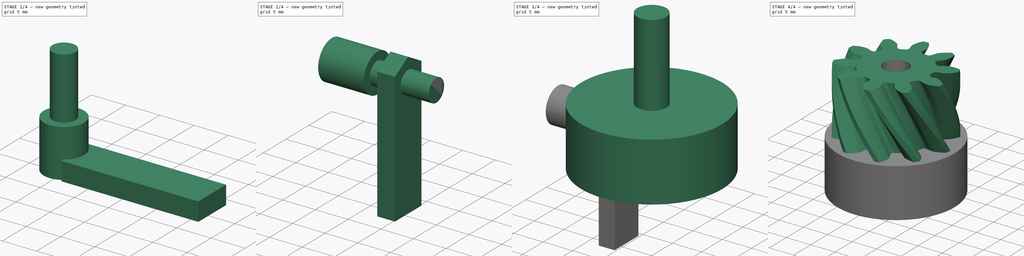
[diagram: build sequence overview — one tinted view per stage of 4, left to right]
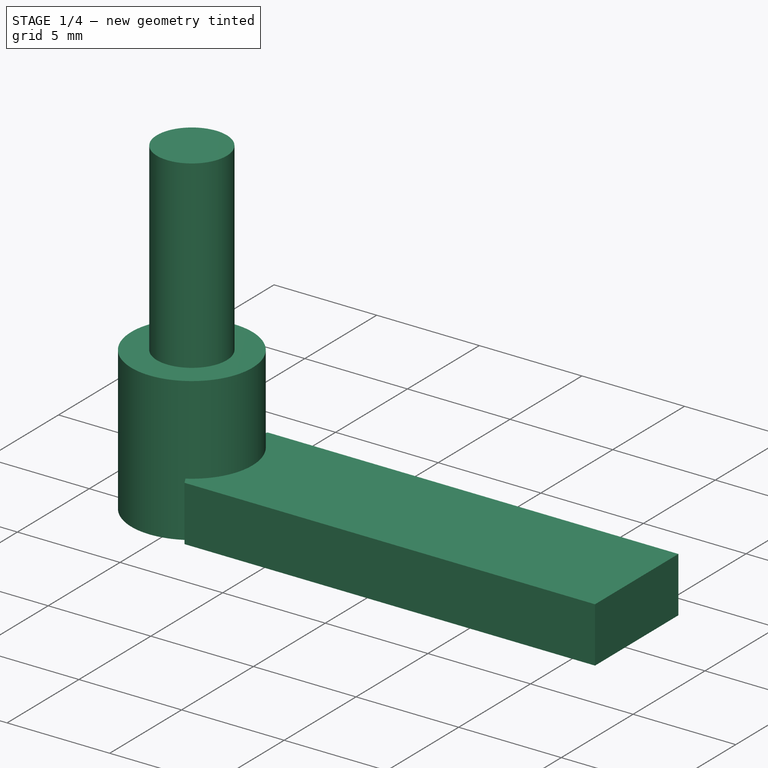
[diagram: stage 1 of 4 — iso view after this stage's code; geometry added in this stage tinted green]
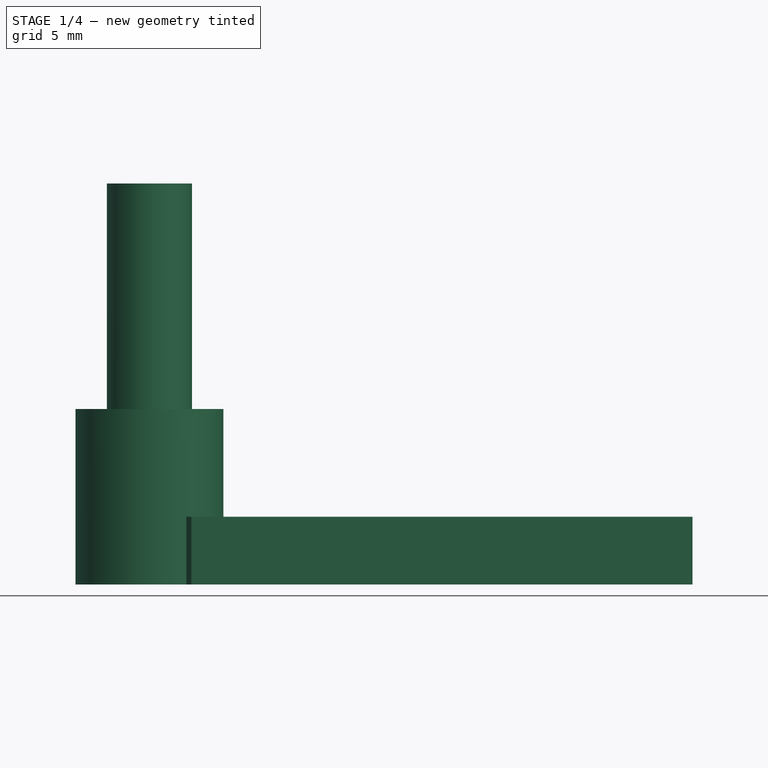
[diagram: stage 1 of 4 — front view after this stage's code; geometry added in this stage tinted green]
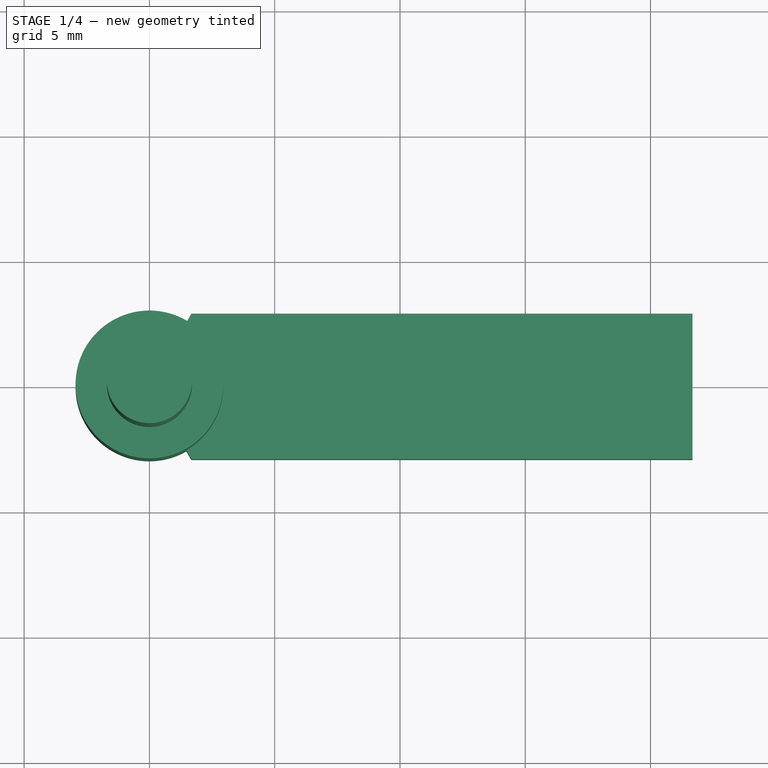
[diagram: stage 1 of 4 — top view after this stage's code; geometry added in this stage tinted green]
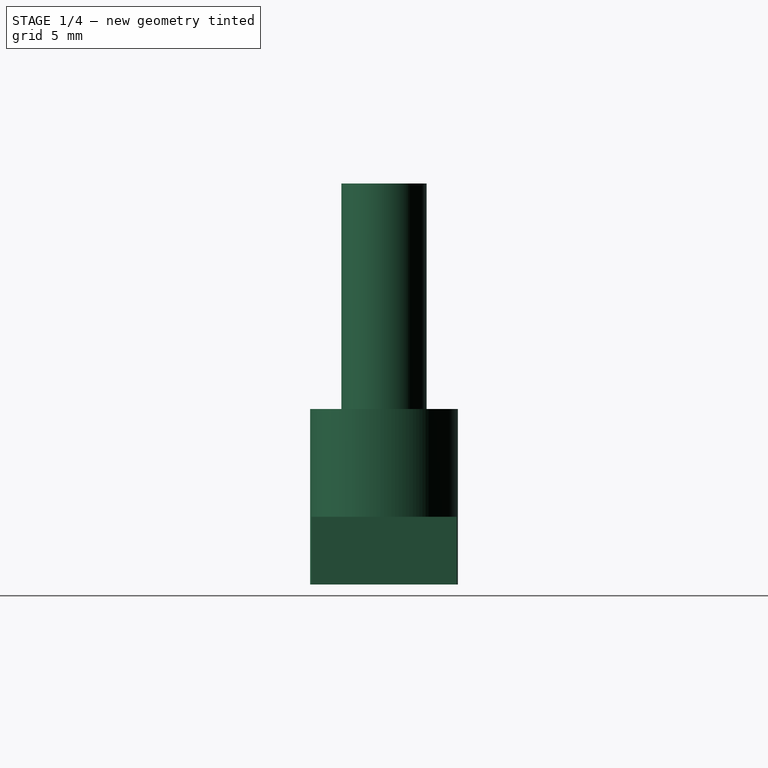
[diagram: stage 1 of 4 — right view after this stage's code; geometry added in this stage tinted green]
FCSTD DOCUMENT  (FreeCAD 0.16R6458 (Git))
Label: Art4MotorGear
License: All rights reserved
LicenseURL: http://en.wikipedia.org/wiki/All_rights_reserved
objects: Part::Cylinder×4, Part::MultiFuse×3, Part::FeaturePython×2, Sketcher::SketchObject×1, PartDesign::Pad×1, Part::Part2DObjectPython×1, Part::Helix×1, Part::Sweep×1, Part::Cut×1, App::DocumentObjectGroup×1
note: 16 computed .brp shape members not serialized (recipe doc carries the construction recipe); baked Part::Feature solids carry a one-line shape summary decoded from their .brp

FEATURE [Part::Cylinder] Cylinder  label="M3BoltHead"
  Angle = 360
  Height = 7
  Radius = 2.95
FEATURE [Part::Cylinder] Cylinder001  label="M3BoltBody"
  Angle = 360
  Height = 10
  Placement = pos=(0,0,6) rot=(0,0,1;0rad)
  Radius = 1.7
FEATURE [Sketcher::SketchObject] Sketch003  label="M3NutHousingSketch"
  sketch-geometry (5):
    g0: LineSegment StartX=0 StartY=0 StartZ=0 EndX=1.67432 EndY=2.9 EndZ=0
    g1: LineSegment StartX=1.67432 StartY=2.9 StartZ=0 EndX=21.6743 EndY=2.9 EndZ=0
    g2: LineSegment StartX=21.6743 StartY=2.9 StartZ=0 EndX=21.6743 EndY=-2.9 EndZ=0
    g3: LineSegment StartX=21.6743 StartY=-2.9 StartZ=0 EndX=1.67432 EndY=-2.9 EndZ=0
    g4: LineSegment StartX=1.67432 StartY=-2.9 StartZ=0 EndX=0 EndY=0 EndZ=0
  constraints (14):
    c: Coincident(g-1,g0)
    c: Coincident(g0,g1)
    c: Horizontal(g1)
    c: Coincident(g1,g2)
    c: Vertical(g2)
    c: Coincident(g2,g3)
    c: Horizontal(g3)
    c: Coincident(g3,g4)
    c: Coincident(g4,g0)
    c: Equal(g3,g1)
    c: Equal(g4,g0)
    c: DistanceY(g2) = -5.8
    c: Angle(g-1,g0) = 1.0472
    c: DistanceX(g3) = -20
FEATURE [PartDesign::Pad] Pad002  label="M3NutHousing"
  Length = 2.7
  Length2 = 100
  Sketch = -> Sketch003
  Type = 0
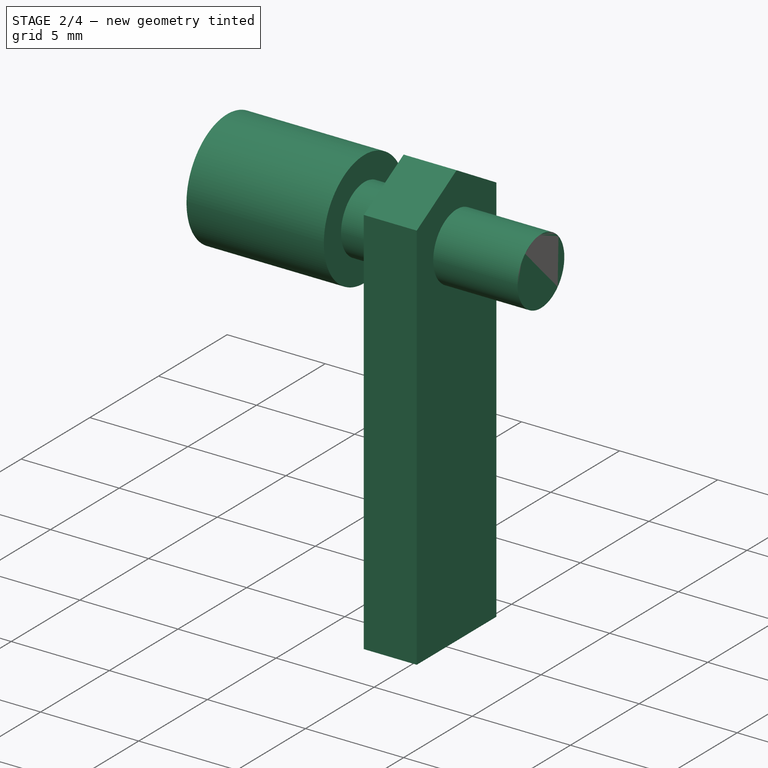
[diagram: stage 2 of 4 — iso view after this stage's code; geometry added in this stage tinted green]
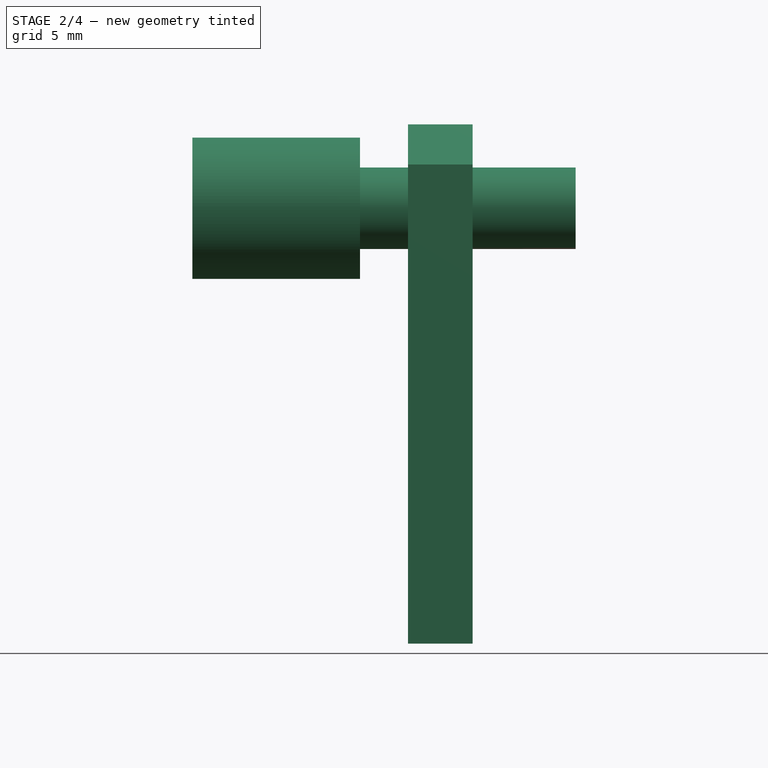
[diagram: stage 2 of 4 — front view after this stage's code; geometry added in this stage tinted green]
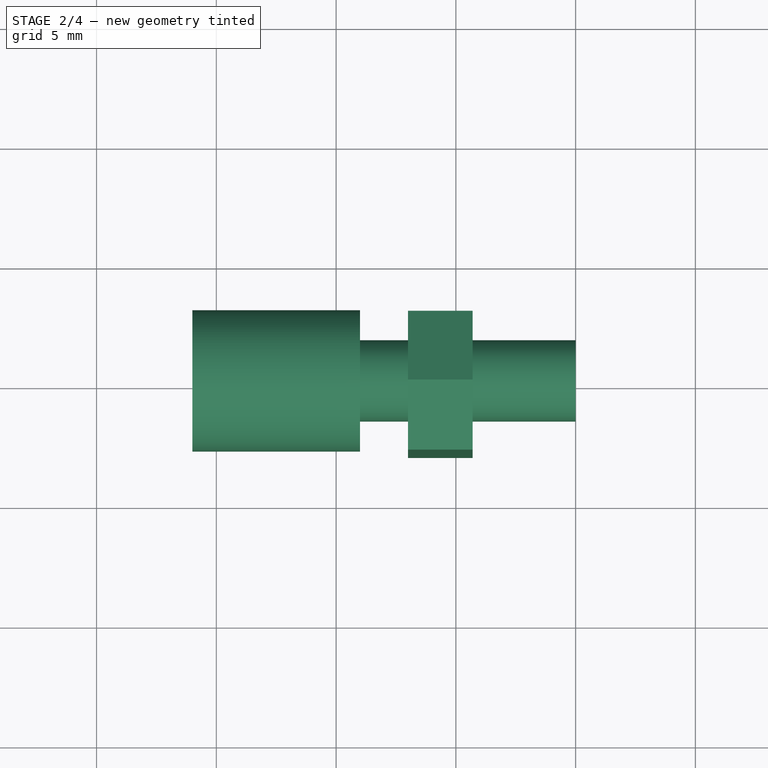
[diagram: stage 2 of 4 — top view after this stage's code; geometry added in this stage tinted green]
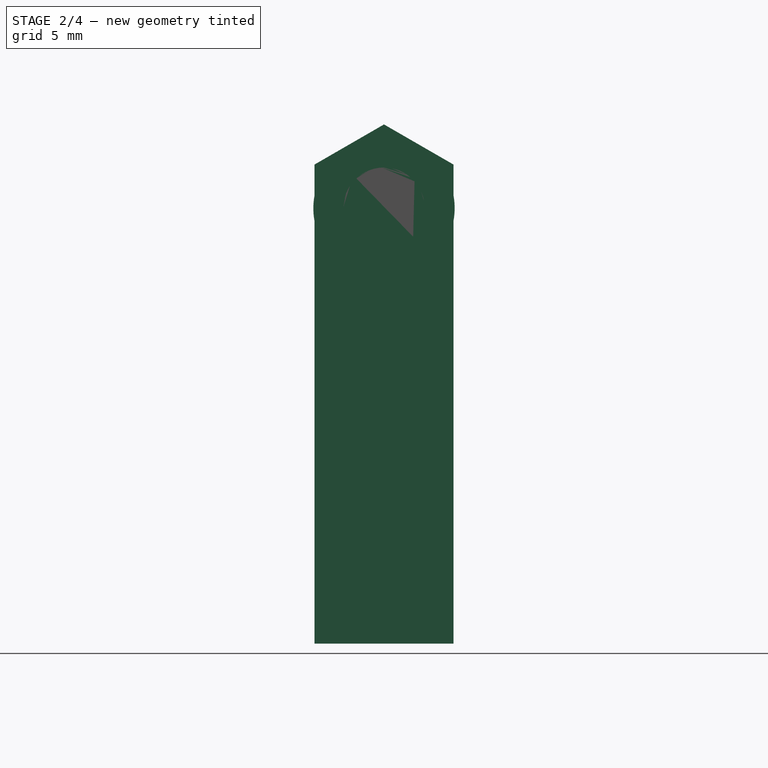
[diagram: stage 2 of 4 — right view after this stage's code; geometry added in this stage tinted green]
FEATURE [Part::MultiFuse] Fusion  label="M3Bolt"
  Shapes = -> [Cylinder001,Cylinder]
FEATURE [Part::FeaturePython] Clone249  label="Clone of M3Bolt083"  # Draft clone (typed FeaturePython)
  Objects = -> [Fusion]
  Placement = pos=(-16,0,5.5) rot=(0,1,0;1.5708rad)
  Scale = (1,1,1)
FEATURE [Part::FeaturePython] Clone250  label="Clone of M3NutHousing024"  # Draft clone (typed FeaturePython)
  Objects = -> [Pad002]
  Placement = pos=(-7,0,9) rot=(0,1,0;1.5708rad)
  Scale = (1,1,1)
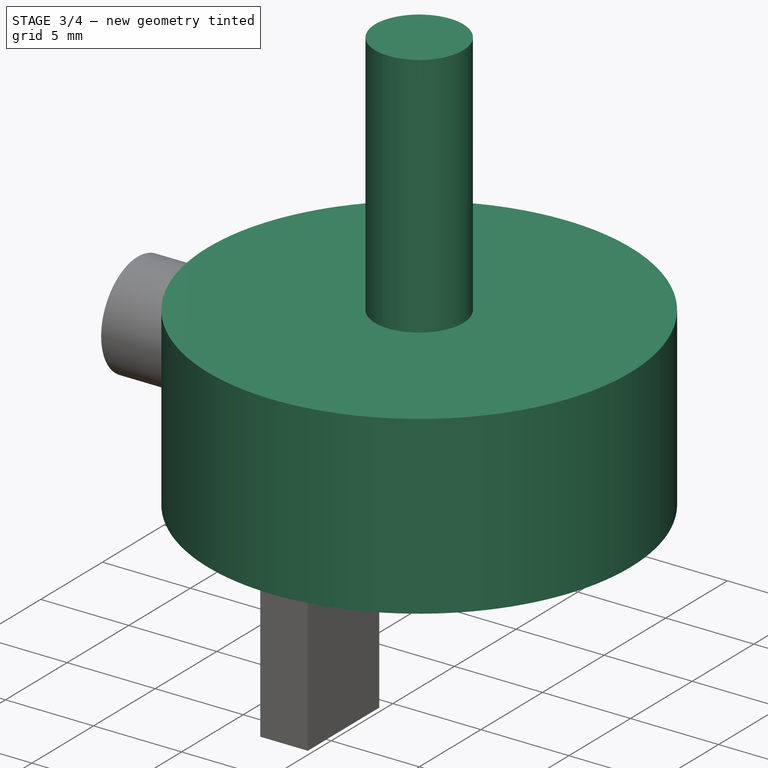
[diagram: stage 3 of 4 — iso view after this stage's code; geometry added in this stage tinted green]
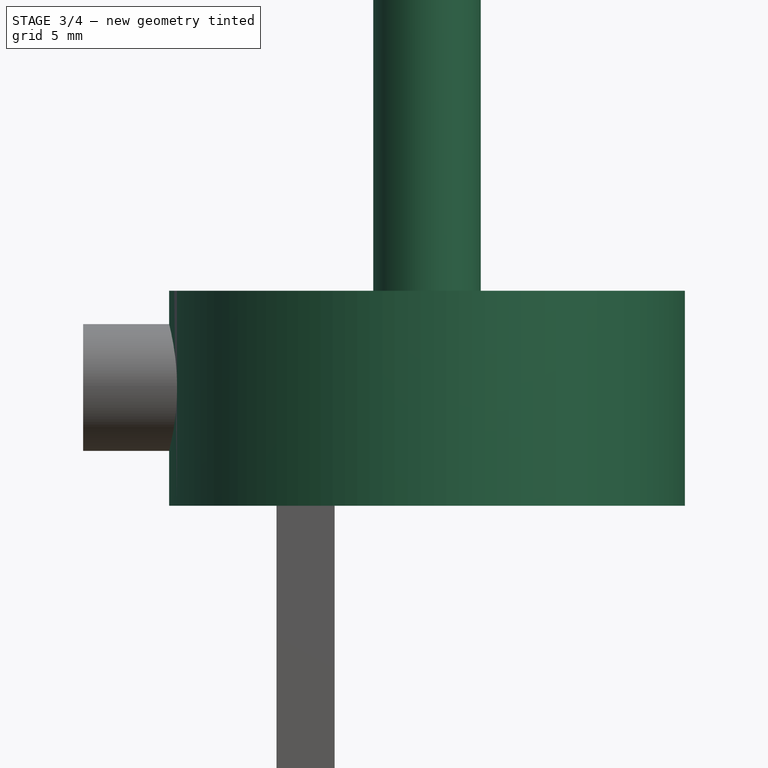
[diagram: stage 3 of 4 — front view after this stage's code; geometry added in this stage tinted green]
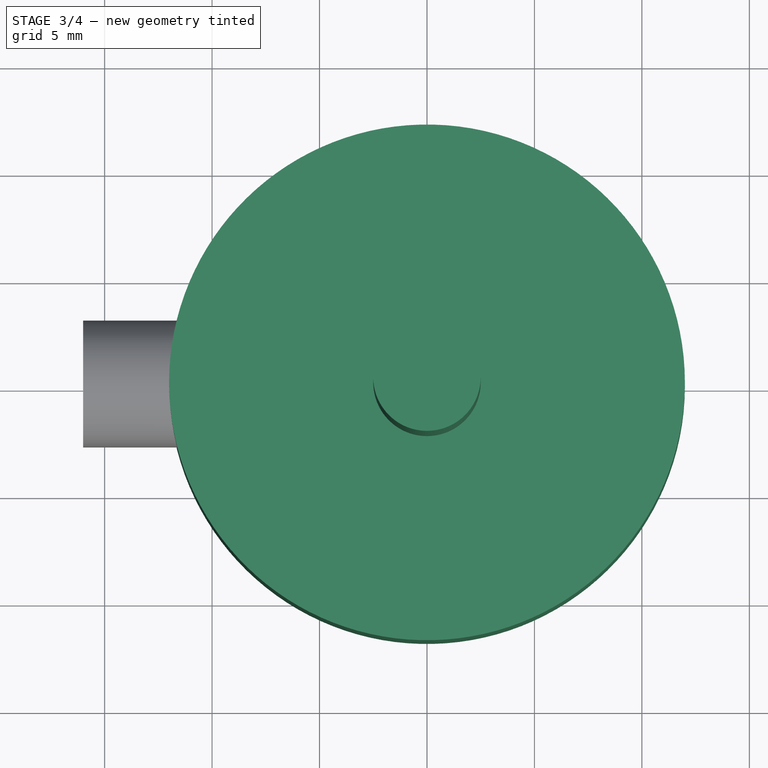
[diagram: stage 3 of 4 — top view after this stage's code; geometry added in this stage tinted green]
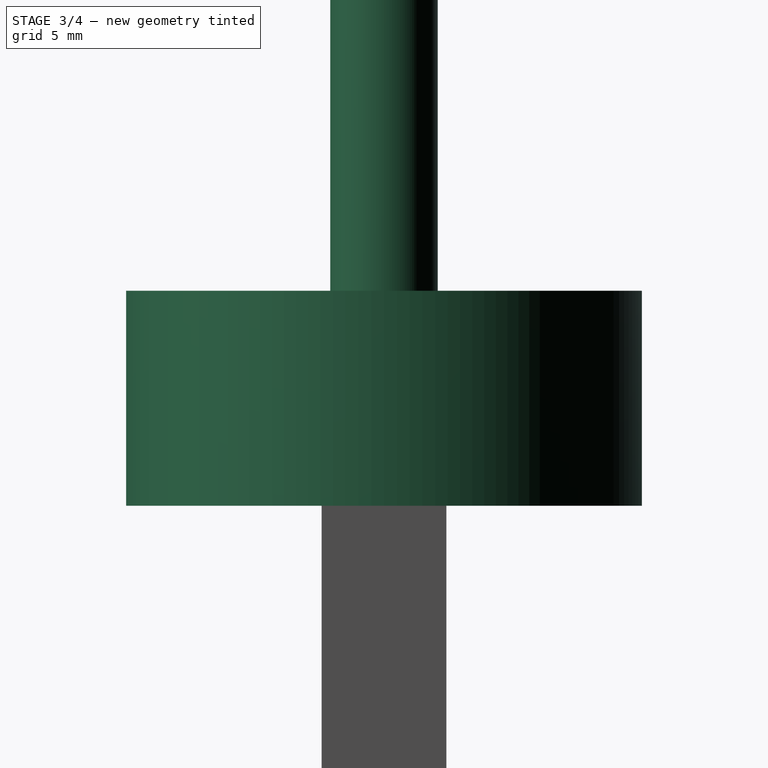
[diagram: stage 3 of 4 — right view after this stage's code; geometry added in this stage tinted green]
FEATURE [Part::Part2DObjectPython] InvoluteGear004  # Draft 2D object (typed FeaturePython)
  ExternalGear = true
  HighPrecision = true
  Modules = 1.8
  NumberOfTeeth = 10
  Placement = pos=(0,0,10) rot=(0,0,1;0rad)
  PressureAngle = 20
FEATURE [Part::Cylinder] Cylinder1024  label="Cylinder1060"
  Angle = 360
  Height = 10
  Radius = 12
FEATURE [Part::Cylinder] Cylinder1025  label="Cylinder1069"
  Angle = 360
  Height = 24
  Radius = 2.5
FEATURE [Part::MultiFuse] Fusion088
  Shapes = -> [Clone250,Clone249,Cylinder1025]
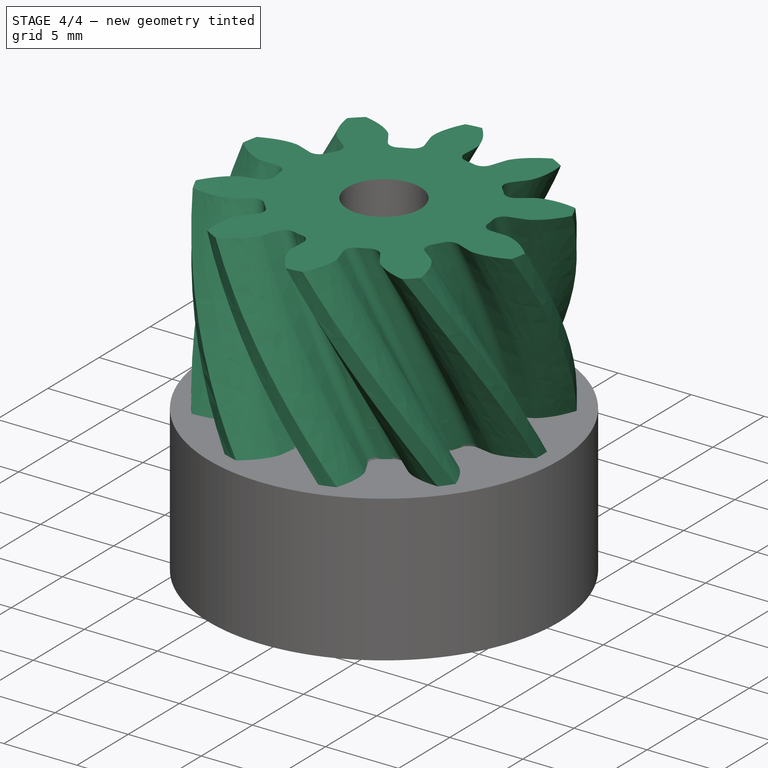
[diagram: stage 4 of 4 — iso view after this stage's code; geometry added in this stage tinted green]
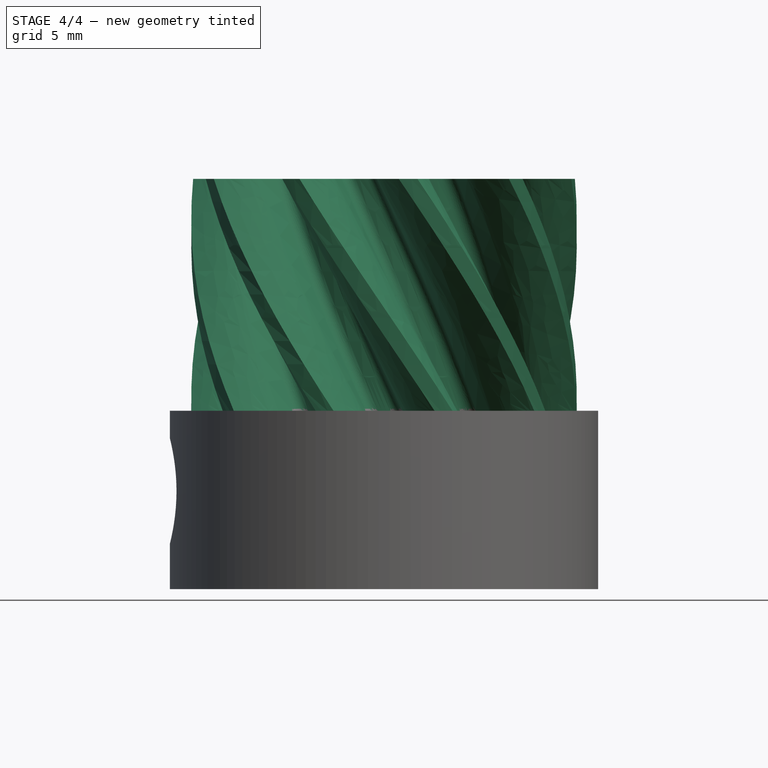
[diagram: stage 4 of 4 — front view after this stage's code; geometry added in this stage tinted green]
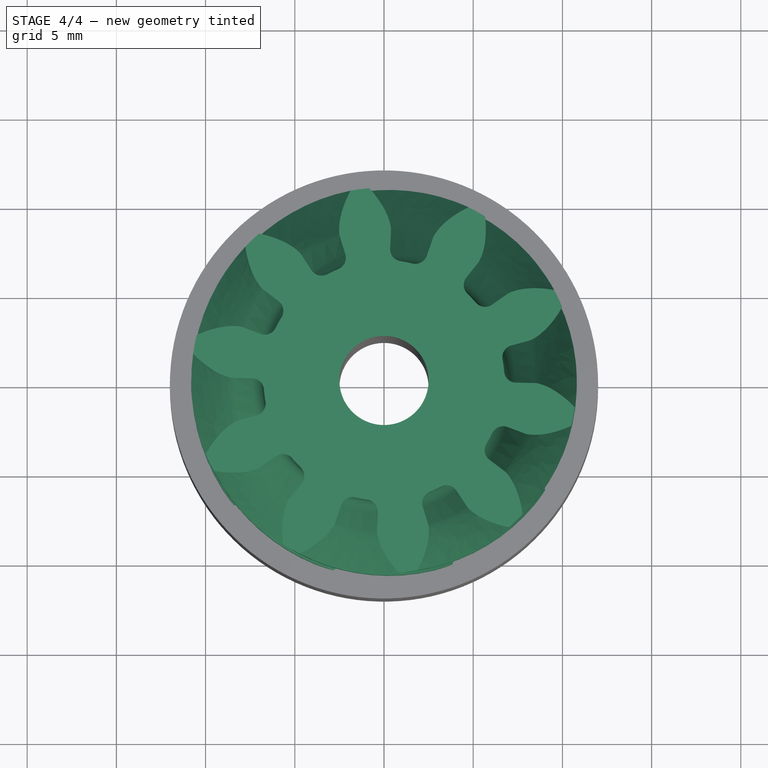
[diagram: stage 4 of 4 — top view after this stage's code; geometry added in this stage tinted green]
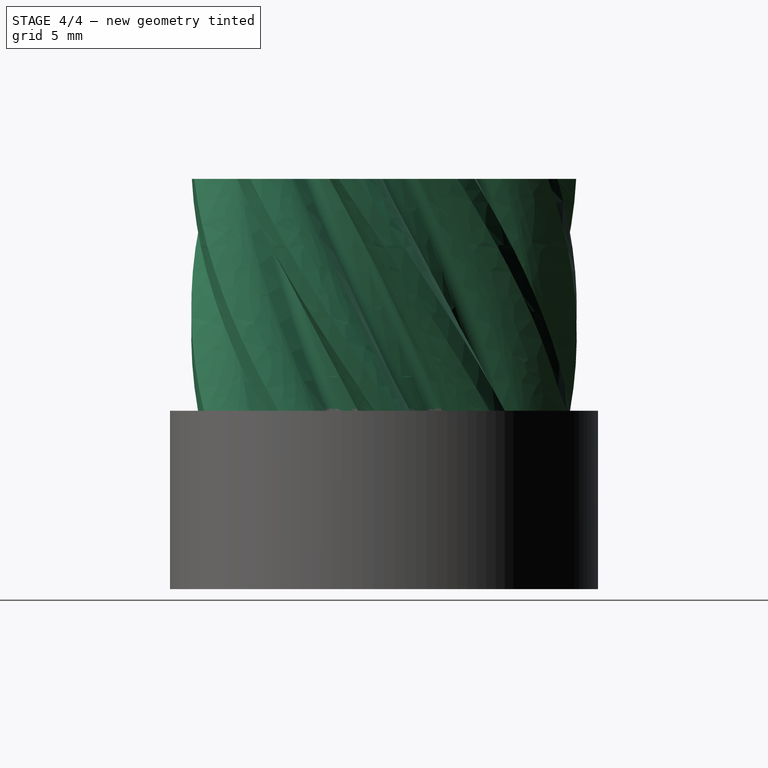
[diagram: stage 4 of 4 — right view after this stage's code; geometry added in this stage tinted green]
FEATURE [Part::Helix] Helix004  label="Art4MotorGearHelix"
  Angle = 0
  Height = 13
  LocalCoord = 1
  Pitch = 100
  Placement = pos=(0,0,10) rot=(0,0,1;0rad)
  Radius = 1
  Style = 1
FEATURE [Part::Sweep] Sweep004
  Frenet = true
  Sections = -> [InvoluteGear004]
  Solid = true
  Spine = -> Helix004 [Edge1]
  Transition = 1
FEATURE [Part::MultiFuse] Fusion087
  Shapes = -> [Cylinder1024,Sweep004]
FEATURE [Part::Cut] Cut074  label="Art4MotorGear"
  Base = -> Fusion087
  Tool = -> Fusion088
FEATURE [App::DocumentObjectGroup] Group  label="Master"
  Group = -> [Fusion,Pad002,Helix004]
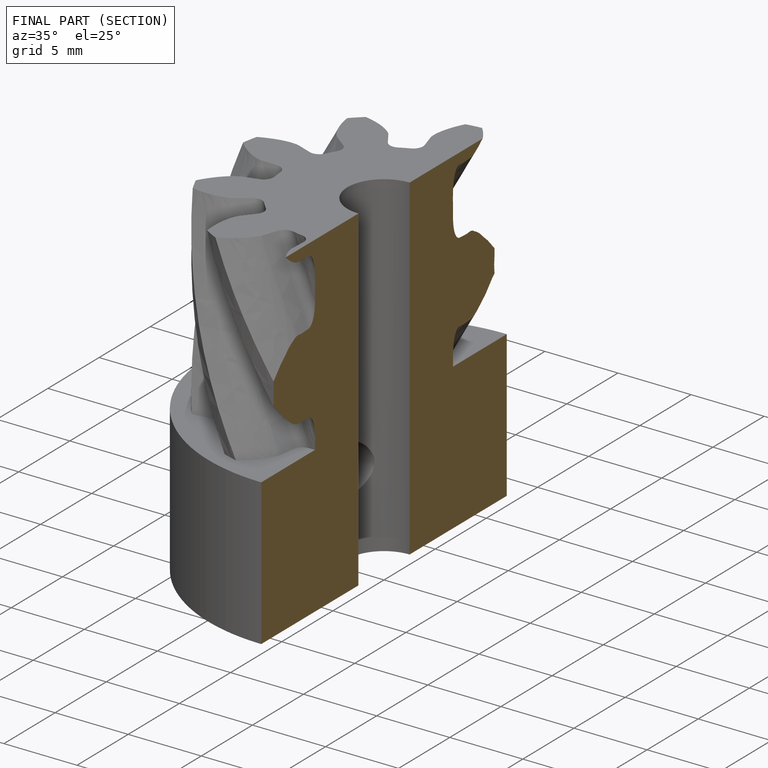
[diagram: finished part — half-section view (interior)]
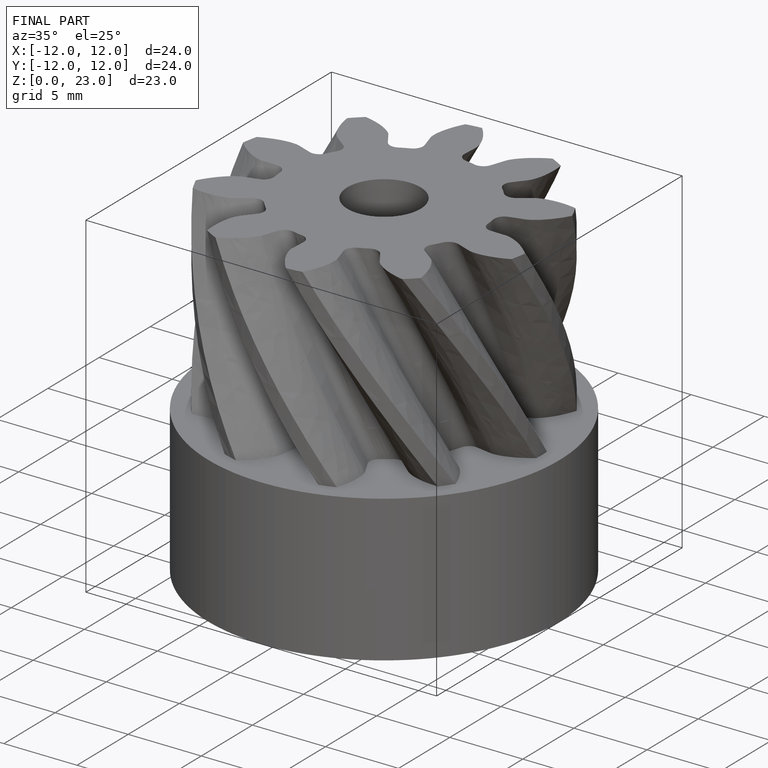
[diagram: finished part — iso view with bounding-box wireframe]
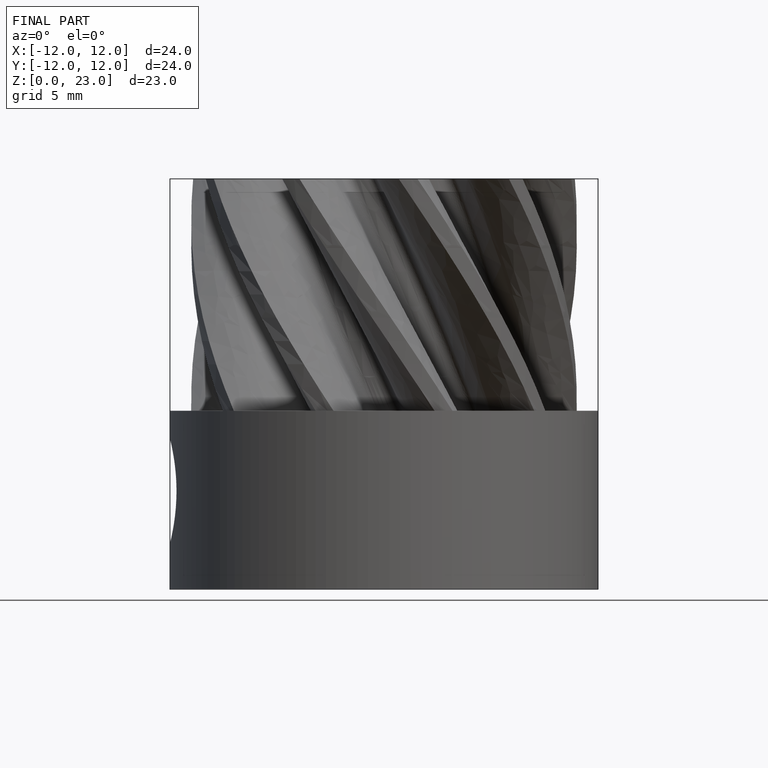
[diagram: finished part — front view with bounding-box wireframe]
